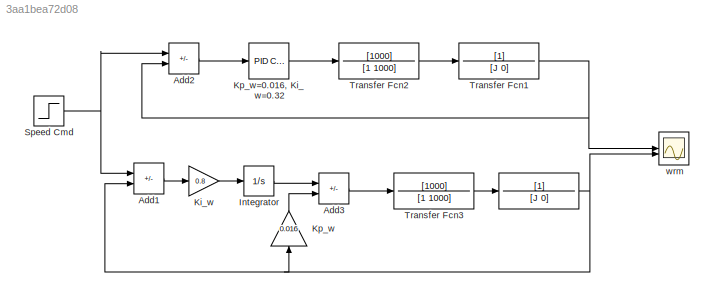
MODEL slx_3aa1bea72d08
KIND model
CONFIG AbsTol = auto
CONFIG EnableMultiTasking = off
CONFIG FixedStep = 0.00001
CONFIG MaxStep = auto
CONFIG MinStep = auto
CONFIG RelTol = 1e-3
CONFIG SampleTimeConstraint = Unconstrained
CONFIG SolverName = FixedStepAuto
CONFIG StartTime = 0.0
CONFIG StopTime = 0.6
BLOCK [TransferFcn]  
  Denominator = [J 0]
BLOCK [Sum] Add1
  IconShape = rectangular
  Inputs = +-
BLOCK [Sum] Add2
  IconShape = rectangular
  Inputs = +-
BLOCK [Sum] Add3
  IconShape = rectangular
  Inputs = +-
BLOCK [Integrator] Integrator
BLOCK [Gain] Ki_w
  Gain = 0.8
BLOCK [Gain] Kp_w
  Gain = 0.016
  NameLocation = right
BLOCK [Reference] Kp_w=0.016, Ki_w=0.32  REF=slpidlib/PID Controller
  LibrarySourceBlock = simulink/Continuous/PID Controller
  SourceBlock = slpidlib/PID Controller
  SourceType = PID 1dof
BLOCK [Step] Speed Cmd
  After = 100
  SampleTime = 0
  Time = 0
BLOCK [TransferFcn] Transfer Fcn1
  Denominator = [J 0]
BLOCK [TransferFcn] Transfer Fcn2
  Denominator = [1 1000]
  Numerator = [1000]
BLOCK [TransferFcn] Transfer Fcn3
  Denominator = [1 1000]
  Numerator = [1000]
BLOCK [Scope] wrm
  Floating = off
  NumInputPorts = 2
  ScopeSpecificationString = Simulink.scopes.TimeScopeBlockCfg('CurrentConfiguration', extmgr.ConfigurationSet(extmgr.Configuration('Core','General UI',true,'FigureColor',[1 1 1]),extmgr.Configuration('Core','Source UI',true),extmgr.Configuration('Sources','WiredSimulink',true,'DataLoggingVariableName','ScopeData2'),extmgr.Configuration('Visuals','Time Domain',true,'SerializedDisplays',{struct('MinYLimReal','-14.05275','MaxYL...<+1713ch>
NET  :1 -> Add1:2, Kp_w:1, wrm:2
LINE Add1:1 -> Ki_w:1
LINE Add2:1 -> Kp_w=0.016, Ki_w=0.32:1
LINE Add3:1 -> Transfer Fcn3:1
LINE Integrator:1 -> Add3:1
LINE Ki_w:1 -> Integrator:1
LINE Kp_w:1 -> Add3:2
LINE Kp_w=0.016, Ki_w=0.32:1 -> Transfer Fcn2:1
NET Speed Cmd:1 -> Add1:1, Add2:1
NET Transfer Fcn1:1 -> Add2:2, wrm:1
LINE Transfer Fcn2:1 -> Transfer Fcn1:1
LINE Transfer Fcn3:1 ->  :1
note: NET lines group one-source signal fan-out (src -> all destinations, sorted); 1:1 wires keep LINE
